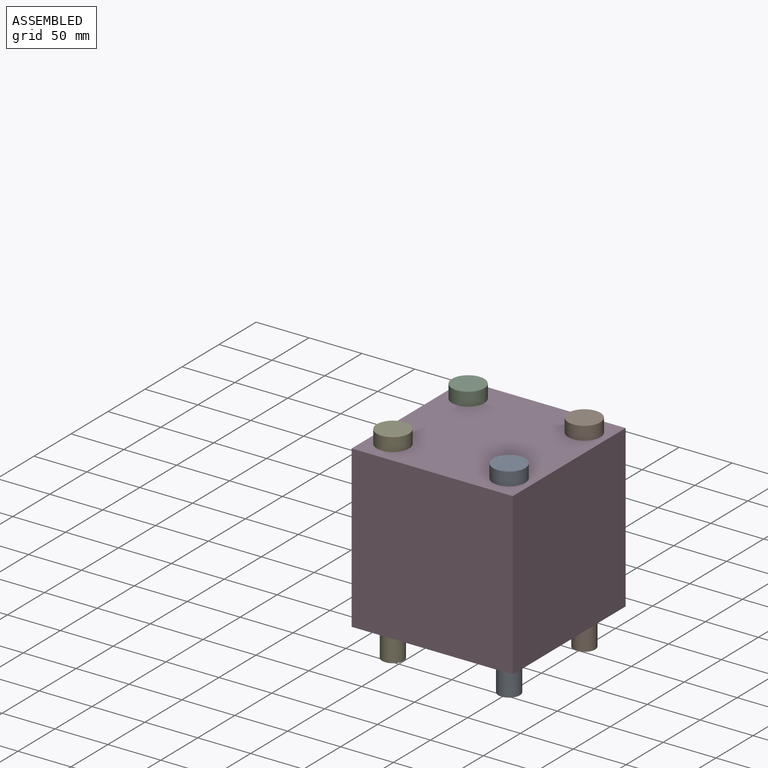
[diagram: assembled view]
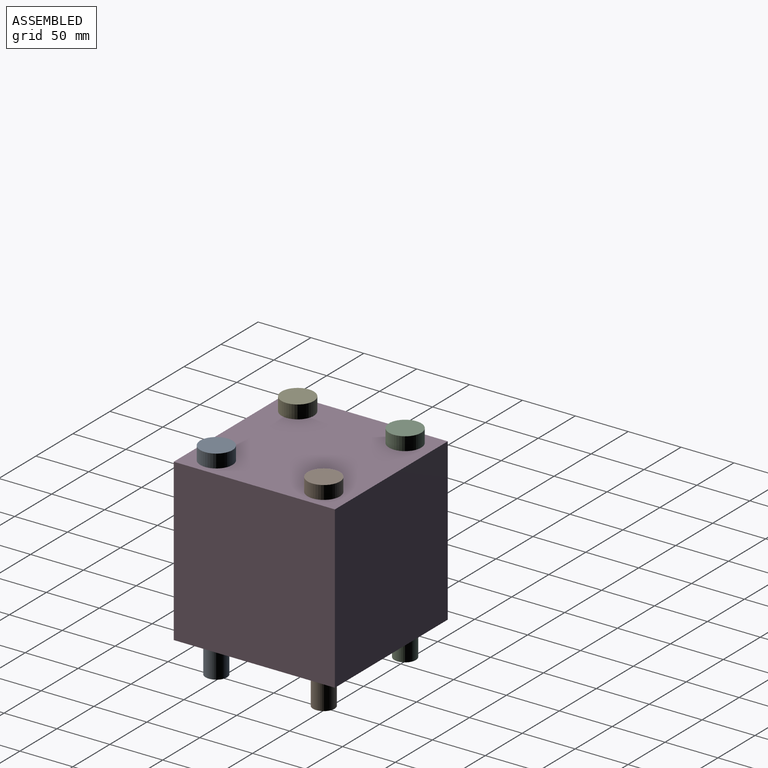
[diagram: assembled view, second angle]
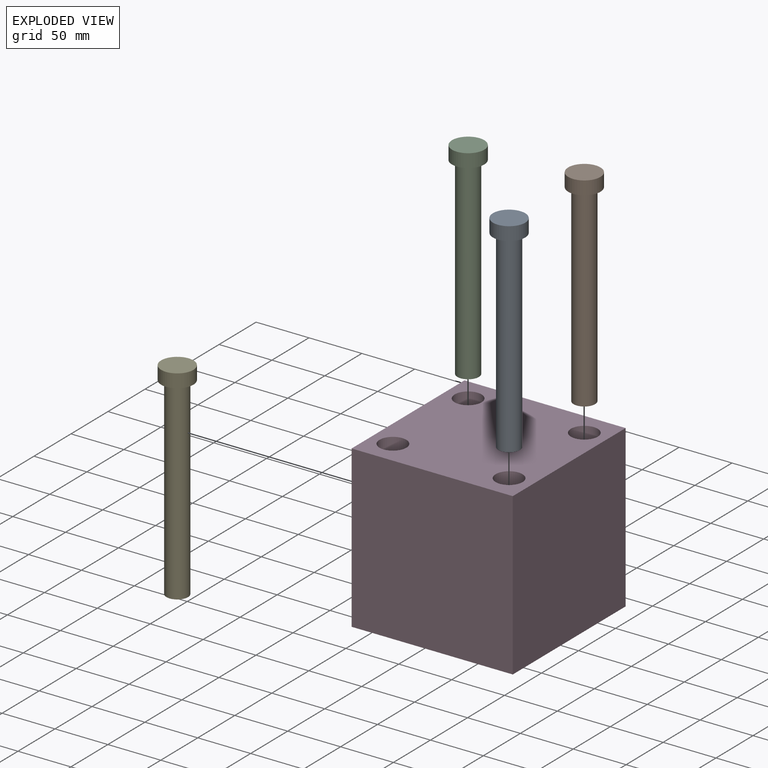
[diagram: exploded view]
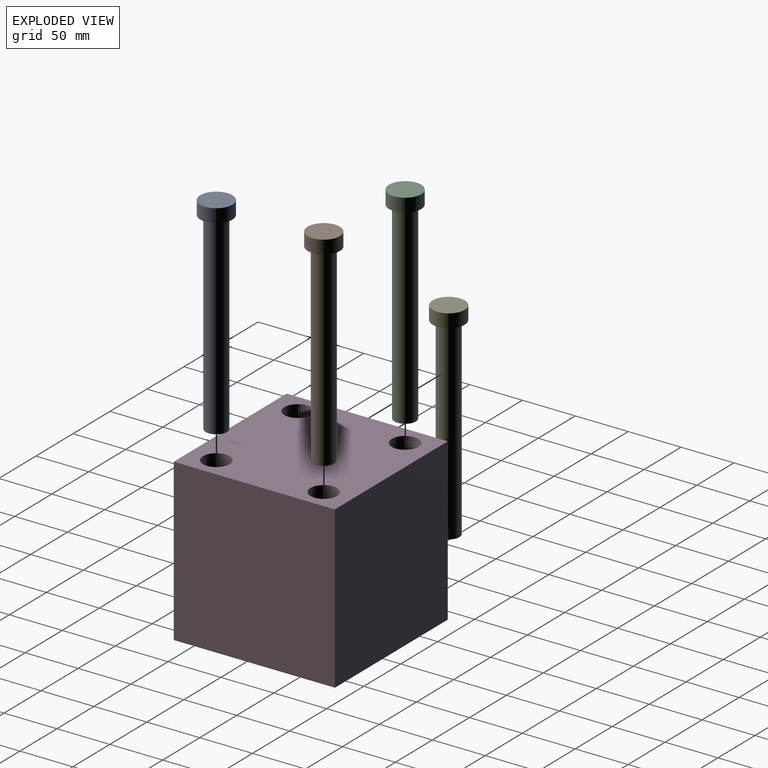
[diagram: exploded view, second angle]
ASSEMBLY  parts=5 mates=3
PART A: 5 faces, bbox 30.5x30.5x195.6 mm
  f0: plane 20.32x20.32mm, normal (0,0,-1), area 324.3mm2, adj f1
  f1: cylinder r=10.16mm len=182.88mm, axis (0,0,-1), area 11674.5mm2, adj f0,f2
  f2: plane 30.48x30.48mm, normal (0,0,-1), area 405.4mm2, adj f1,f3
  f3: cylinder r=15.24mm len=30.48mm, axis (0,0,-1), area 1216.1mm2, adj f2,f4
  f4: plane 30.48x30.48mm, normal (0,0,1), area 729.7mm2, adj f3
PART B: same geometry as A
PART C: same geometry as A
PART D: 10 faces, bbox 152.4x152.4x152.4 mm
  f0: plane 152.4x152.4mm, normal (1,0,0), area 23225.8mm2, adj f1,f6,f8,f9
  f1: plane 152.4x152.4mm, normal (0,1,0), area 23225.8mm2, adj f0,f2,f8,f9
  f2: plane 152.4x152.4mm, normal (-1,0,0), area 23225.8mm2, adj f1,f6,f8,f9
  f3: cylinder r=12.7mm len=152.4mm, axis (0,0,-1), area 12161mm2, adj f8,f9
  f4: cylinder r=12.7mm len=152.4mm, axis (0,0,-1), area 12161mm2, adj f8,f9
  f5: cylinder r=12.7mm len=152.4mm, axis (0,0,-1), area 12161mm2, adj f8,f9
  f6: plane 152.4x152.4mm, normal (0,-1,0), area 23225.8mm2, adj f0,f2,f8,f9
  f7: cylinder r=12.7mm len=152.4mm, axis (0,0,-1), area 12161mm2, adj f8,f9
  f8: plane 152.4x152.4mm, normal (0,0,1), area 21198.9mm2, adj f0,f1,f2,f3,f4,f5,f6,f7
  f9: plane 152.4x152.4mm, normal (0,0,-1), area 21198.9mm2, adj f0,f1,f2,f3,f4,f5,f6,f7
PART E: same geometry as A
PLACE A t=(109.85,0,0)mm
PLACE B rot(axis=(0,0,1),26.8deg) t=(81.07,120.9,0.31)mm
PLACE C t=(0,101.6,0)mm
PLACE D at identity fixed
PLACE E at identity
MATE cylindrical B.f1 <-> D.f7  axis (0,0,-1) through (54.93,50.8,152.71)mm
MATE fastened A.f1 <-> D.f3  axis (0,0,-1) through (54.93,-50.8,152.4)mm
MATE fastened C.f1 <-> D.f5  axis (0,0,-1) through (-54.93,50.8,152.4)mm
